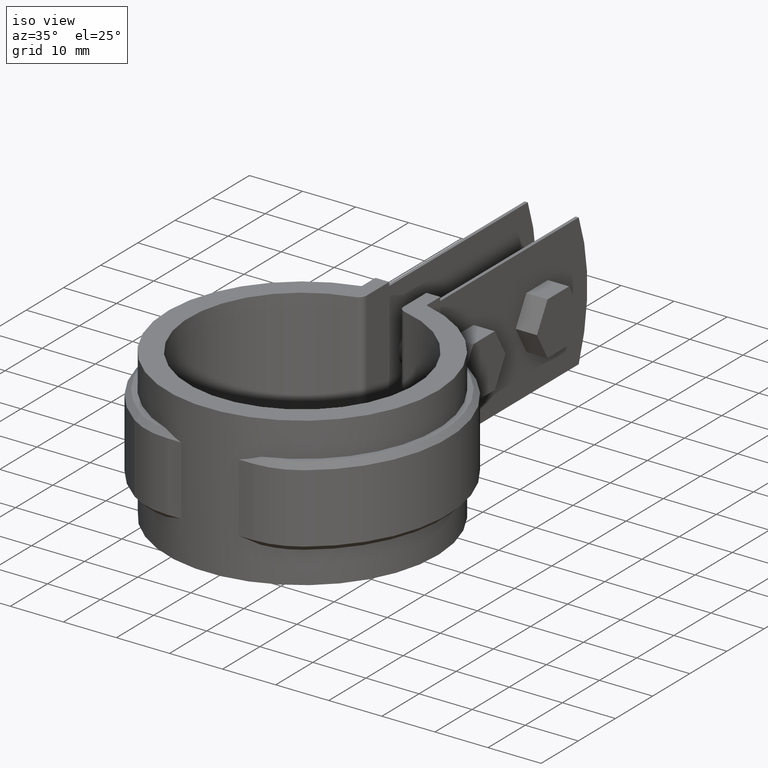
[diagram: clean part render]
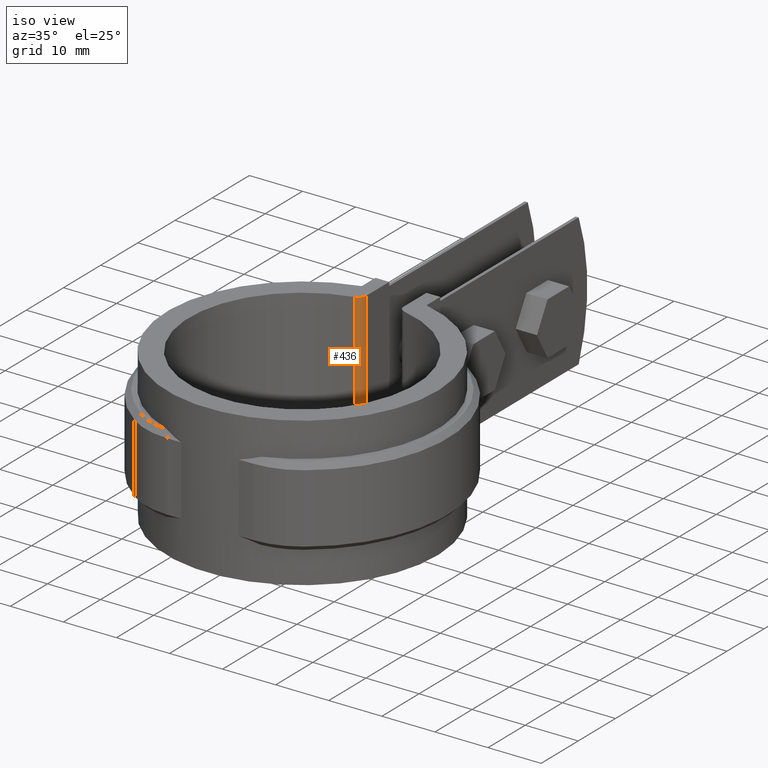
[diagram: same view with one face highlighted and labeled with its STEP entity id]
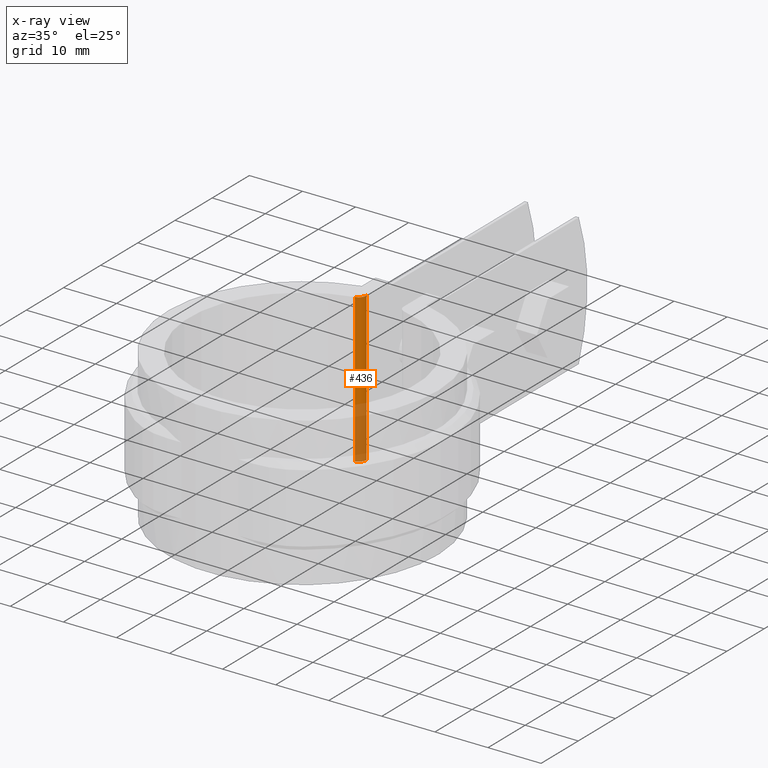
[diagram: x-ray of the same camera — body ghosted, the highlighted face saturated]
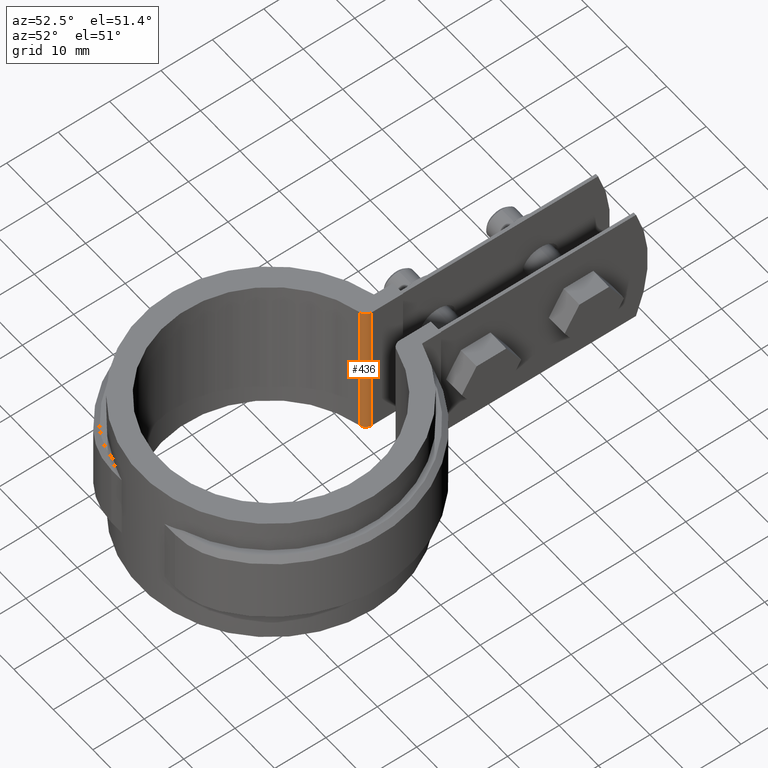
[diagram: same view with one face highlighted and labeled with its STEP entity id]
A machine part, iso view. The second image highlights one B-rep face of the part: STEP entity #436.
The next image is the same camera in x-ray: the body ghosted, the highlighted face saturated — about 35% of this face is hidden behind the body in this view.
A second angle (auxiliary view) of the same face is appended — the face is thin or edge-on in the first view.
In plain terms, the highlighted cylindrical surface (edge-blend (fillet) strip) has radius 1.5 mm, axis along (0, 0, -1).
Its self-contained STEP definition (entity closure, byte-faithful):
#436 = ADVANCED_FACE( '', ( #796 ), #797, .T. );
#796 = FACE_OUTER_BOUND( '', #1642, .T. );
#797 = CYLINDRICAL_SURFACE( '', #1643, 1.50000000000000 );
#1642 = EDGE_LOOP( '', ( #4058, #4059, #4060, #4061 ) );
#1643 = AXIS2_PLACEMENT_3D( '', #4062, #4063, #4064 );
#4058 = ORIENTED_EDGE( '', *, *, #5195, .F. );
#4059 = ORIENTED_EDGE( '', *, *, #5272, .F. );
#4060 = ORIENTED_EDGE( '', *, *, #5263, .F. );
#4061 = ORIENTED_EDGE( '', *, *, #5273, .F. );
#4062 = CARTESIAN_POINT( '', ( -4.99999999999999, 22.2962440783196, -87.7276439060473 ) );
#4063 = DIRECTION( '', ( 0.000000000000000, 0.000000000000000, -1.00000000000000 ) );
#4064 = DIRECTION( '', ( 1.00000000000000, 0.000000000000000, 0.000000000000000 ) );
#5195 = EDGE_CURVE( '', #5985, #5987, #5988, .F. );
#5263 = EDGE_CURVE( '', #6095, #6097, #6098, .T. );
#5272 = EDGE_CURVE( '', #6097, #5985, #6110, .T. );
#5273 = EDGE_CURVE( '', #5987, #6095, #6111, .F. );
#5985 = VERTEX_POINT( '', #9329 );
#5987 = VERTEX_POINT( '', #9331 );
#5988 = CIRCLE( '', #9332, 1.50000000000000 );
#6095 = VERTEX_POINT( '', #9645 );
#6097 = VERTEX_POINT( '', #9648 );
#6098 = CIRCLE( '', #9649, 1.50000000000000 );
#6110 = LINE( '', #9665, #9666 );
#6111 = LINE( '', #9667, #9668 );
#9329 = CARTESIAN_POINT( '', ( -4.67177242888402, 20.8325956705524, 1.50000000000000 ) );
#9331 = CARTESIAN_POINT( '', ( -3.49999999999999, 22.2962440783196, 1.50000000000000 ) );
#9332 = AXIS2_PLACEMENT_3D( '', #10432, #10433, #10434 );
#9645 = CARTESIAN_POINT( '', ( -3.49999999999999, 22.2962440783196, -26.5000000000000 ) );
#9648 = CARTESIAN_POINT( '', ( -4.67177242888402, 20.8325956705524, -26.5000000000000 ) );
#9649 = AXIS2_PLACEMENT_3D( '', #10531, #10532, #10533 );
#9665 = CARTESIAN_POINT( '', ( -4.67177242888402, 20.8325956705524, -87.7276439060473 ) );
#9666 = VECTOR( '', #10550, 1000.00000000000 );
#9667 = CARTESIAN_POINT( '', ( -3.49999999999999, 22.2962440783196, -26.5000000000000 ) );
#9668 = VECTOR( '', #10551, 1000.00000000000 );
#10432 = CARTESIAN_POINT( '', ( -4.99999999999999, 22.2962440783196, 1.50000000000000 ) );
#10433 = DIRECTION( '', ( 0.000000000000000, 0.000000000000000, -1.00000000000000 ) );
#10434 = DIRECTION( '', ( -1.00000000000000, 0.000000000000000, 0.000000000000000 ) );
#10531 = CARTESIAN_POINT( '', ( -4.99999999999999, 22.2962440783196, -26.5000000000000 ) );
#10532 = DIRECTION( '', ( 0.000000000000000, 0.000000000000000, -1.00000000000000 ) );
#10533 = DIRECTION( '', ( -1.00000000000000, 0.000000000000000, 0.000000000000000 ) );
#10550 = DIRECTION( '', ( 0.000000000000000, 0.000000000000000, 1.00000000000000 ) );
#10551 = DIRECTION( '', ( 0.000000000000000, 0.000000000000000, 1.00000000000000 ) );